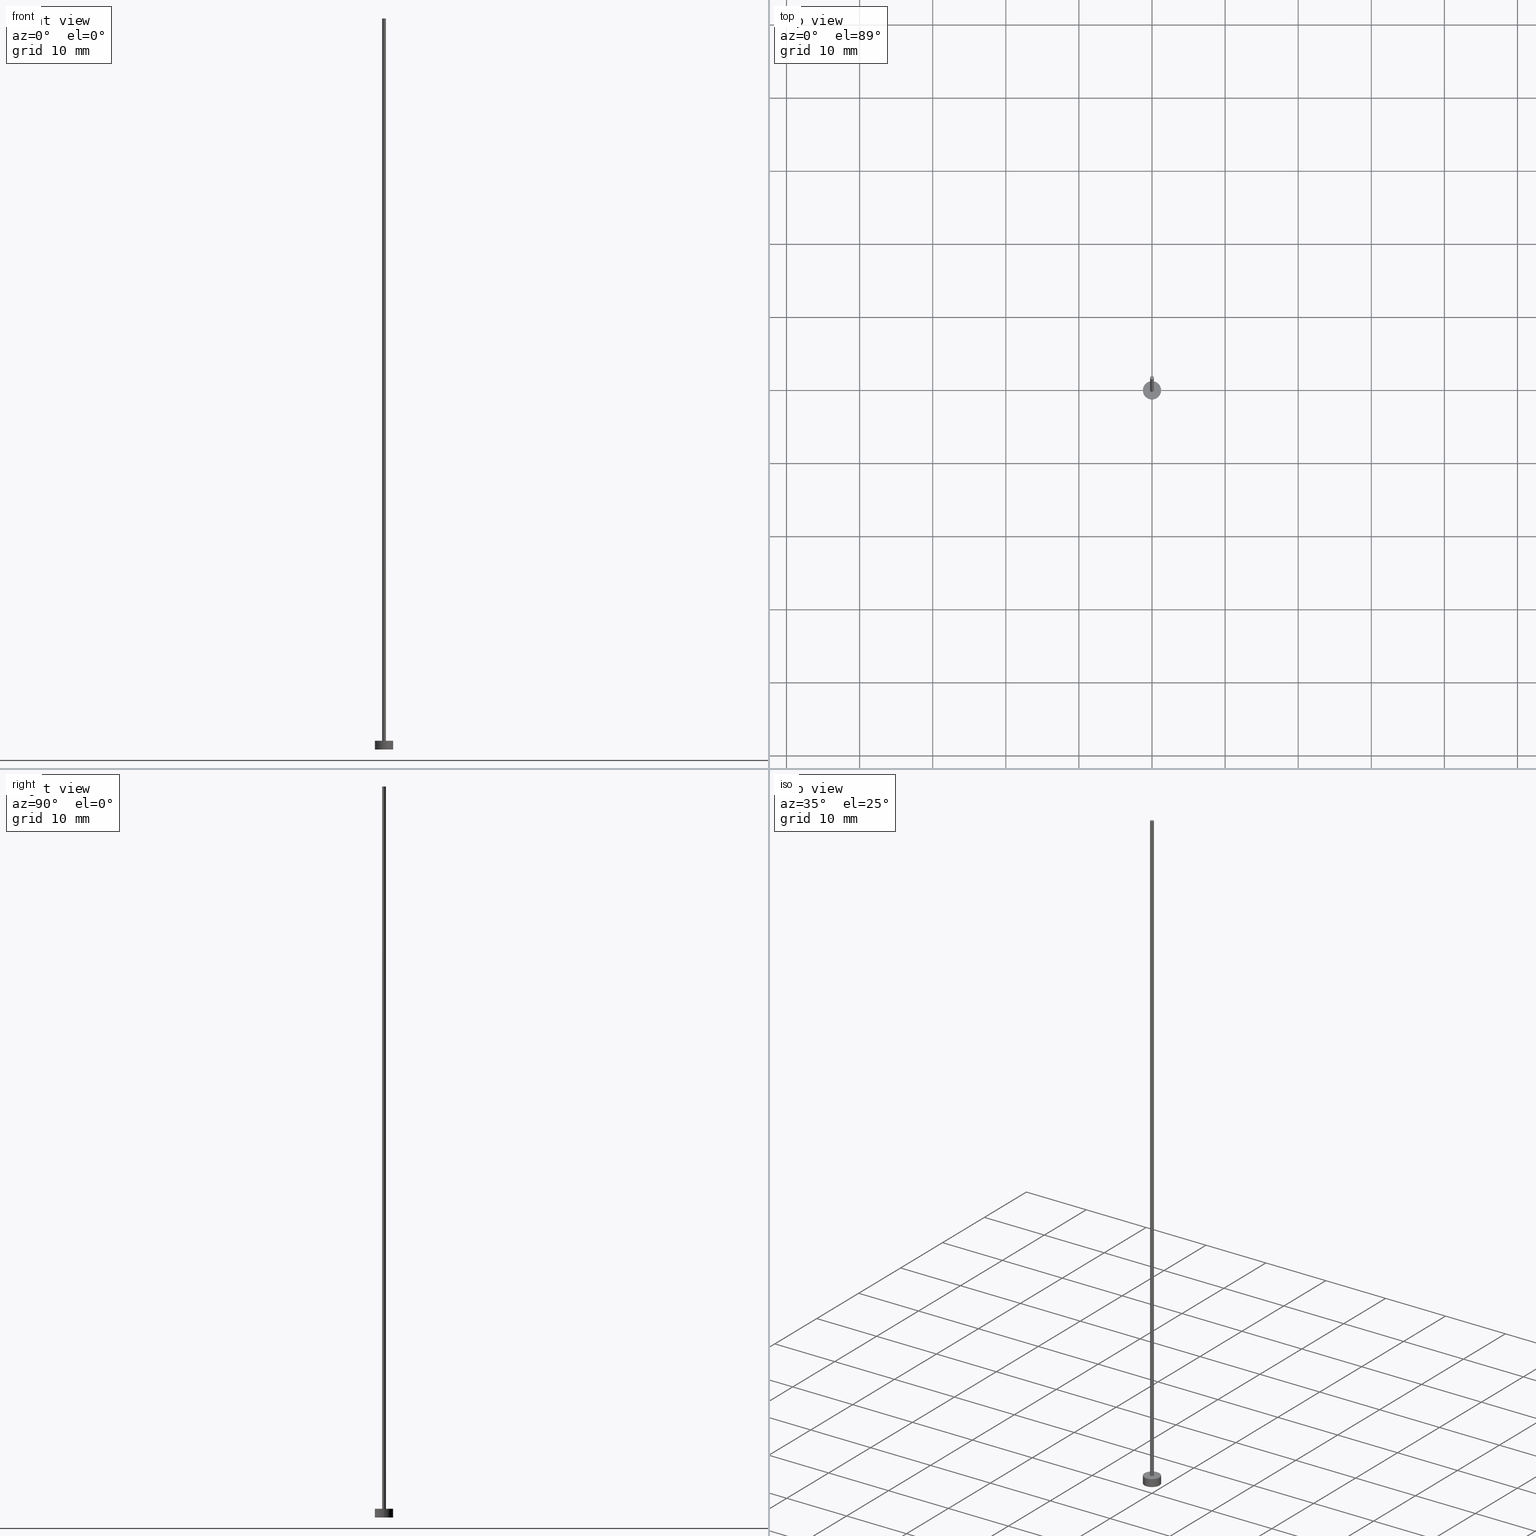
[diagram: canonical four-view strip — front | top / right | iso, engineering-drawing reading convention]
A machine part, canonical four-view strip (front | top / right | iso — engineering-drawing reading convention). The complete STEP part file that produces these views, byte-faithful:
ISO-10303-21;
HEADER;
FILE_DESCRIPTION (( 'STEP AP203' ),
    '1' );
FILE_NAME ('91c2.STEP',
    '2026-02-06T12:45:32',
    ( '' ),
    ( '' ),
    'SwSTEP 2.0',
    'SolidWorks 2019',
    '' );
FILE_SCHEMA (( 'CONFIG_CONTROL_DESIGN' ));
ENDSEC;

DATA;
#1 = AXIS2_PLACEMENT_3D ( 'NONE', #8, #14, #143 ) ;
#2 = EDGE_CURVE ( 'NONE', #106, #155, #159, .T. ) ;
#3 = PRODUCT_DEFINITION_SHAPE ( 'NONE', 'NONE',  #205 ) ;
#4 = DIRECTION ( 'NONE',  ( -0.000000000000000000, -0.000000000000000000, -1.000000000000000000 ) ) ;
#5 =( LENGTH_UNIT ( ) NAMED_UNIT ( * ) SI_UNIT ( .MILLI., .METRE. ) );
#6 = CYLINDRICAL_SURFACE ( 'NONE', #241, 1.250000000000000000 ) ;
#7 = SECURITY_CLASSIFICATION_LEVEL ( 'unclassified' ) ;
#8 = CARTESIAN_POINT ( 'NONE',  ( 0.000000000000000000, 0.000000000000000000, 0.000000000000000000 ) ) ;
#9 = ADVANCED_FACE ( 'NONE', ( #179 ), #214, .T. ) ;
#10 = EDGE_CURVE ( 'NONE', #40, #145, #216, .T. ) ;
#11 = FACE_OUTER_BOUND ( 'NONE', #154, .T. ) ;
#12 = PERSON_AND_ORGANIZATION ( #239, #178 ) ;
#13 = CYLINDRICAL_SURFACE ( 'NONE', #233, 0.2500000000000000000 ) ;
#14 = DIRECTION ( 'NONE',  ( 0.000000000000000000, 0.000000000000000000, 1.000000000000000000 ) ) ;
#15 = DIRECTION ( 'NONE',  ( -0.000000000000000000, -0.000000000000000000, -1.000000000000000000 ) ) ;
#16 =( NAMED_UNIT ( * ) PLANE_ANGLE_UNIT ( ) SI_UNIT ( $, .RADIAN. ) );
#17 = ORIENTED_EDGE ( 'NONE', *, *, #227, .F. ) ;
#18 = CC_DESIGN_APPROVAL ( #187, ( #205 ) ) ;
#19 = DIRECTION ( 'NONE',  ( -1.000000000000000000, 0.000000000000000000, 0.000000000000000000 ) ) ;
#20 = SECURITY_CLASSIFICATION ( '', '', #7 ) ;
#21 = CARTESIAN_POINT ( 'NONE',  ( 0.000000000000000000, 0.000000000000000000, 100.0000000000000000 ) ) ;
#22 = EDGE_LOOP ( 'NONE', ( #17, #109 ) ) ;
#23 =( GEOMETRIC_REPRESENTATION_CONTEXT ( 3 ) GLOBAL_UNCERTAINTY_ASSIGNED_CONTEXT ( ( #34 ) ) GLOBAL_UNIT_ASSIGNED_CONTEXT ( ( #5, #16, #44 ) ) REPRESENTATION_CONTEXT ( 'NONE', 'WORKASPACE' ) );
#24 = CIRCLE ( 'NONE', #86, 0.2500000000000000000 ) ;
#25 = APPLICATION_PROTOCOL_DEFINITION ( 'international standard', 'config_control_design', 1994, #29 ) ;
#26 = CARTESIAN_POINT ( 'NONE',  ( 1.250000000000000000, 1.530808498934191571E-16, 1.199999999999999956 ) ) ;
#27 = COORDINATED_UNIVERSAL_TIME_OFFSET ( 1, 0, .AHEAD. ) ;
#28 = APPLICATION_PROTOCOL_DEFINITION ( 'international standard', 'config_control_design', 1994, #111 ) ;
#29 = APPLICATION_CONTEXT ( 'configuration controlled 3d designs of mechanical parts and assemblies' ) ;
#30 = PLANE ( 'NONE',  #1 ) ;
#31 = ADVANCED_FACE ( 'NONE', ( #166 ), #13, .T. ) ;
#32 = PERSON_AND_ORGANIZATION_ROLE ( 'creator' ) ;
#33 = VERTEX_POINT ( 'NONE', #68 ) ;
#34 = UNCERTAINTY_MEASURE_WITH_UNIT (LENGTH_MEASURE( 1.000000000000000082E-05 ), #5, 'distance_accuracy_value', 'NONE');
#35 = VERTEX_POINT ( 'NONE', #252 ) ;
#36 = VERTEX_POINT ( 'NONE', #73 ) ;
#37 = EDGE_CURVE ( 'NONE', #161, #35, #147, .T. ) ;
#38 = AXIS2_PLACEMENT_3D ( 'NONE', #59, #93, #89 ) ;
#39 = CARTESIAN_POINT ( 'NONE',  ( 0.000000000000000000, 0.000000000000000000, 1.199999999999999956 ) ) ;
#40 = VERTEX_POINT ( 'NONE', #125 ) ;
#41 = FACE_OUTER_BOUND ( 'NONE', #128, .T. ) ;
#42 = FACE_OUTER_BOUND ( 'NONE', #102, .T. ) ;
#43 = AXIS2_PLACEMENT_3D ( 'NONE', #39, #173, #134 ) ;
#44 =( NAMED_UNIT ( * ) SI_UNIT ( $, .STERADIAN. ) SOLID_ANGLE_UNIT ( ) );
#45 = MECHANICAL_CONTEXT ( 'NONE', #29, 'mechanical' ) ;
#46 = APPROVAL_STATUS ( 'not_yet_approved' ) ;
#47 = CARTESIAN_POINT ( 'NONE',  ( -0.2500000000000000000, 0.000000000000000000, 100.0000000000000000 ) ) ;
#48 = LOCAL_TIME ( 13, 45, 32.00000000000000000, #27 ) ;
#49 = COORDINATED_UNIVERSAL_TIME_OFFSET ( 1, 0, .AHEAD. ) ;
#50 = CARTESIAN_POINT ( 'NONE',  ( 0.000000000000000000, 0.000000000000000000, 1.199999999999999956 ) ) ;
#51 = EDGE_CURVE ( 'NONE', #35, #155, #104, .T. ) ;
#52 = EDGE_CURVE ( 'NONE', #36, #33, #211, .T. ) ;
#53 = CARTESIAN_POINT ( 'NONE',  ( -1.250000000000000000, 0.000000000000000000, 1.199999999999999956 ) ) ;
#54 = APPROVAL_ROLE ( '' ) ;
#55 = AXIS2_PLACEMENT_3D ( 'NONE', #80, #238, #113 ) ;
#56 = APPROVAL_PERSON_ORGANIZATION ( #146, #193, #54 ) ;
#57 = ORIENTED_EDGE ( 'NONE', *, *, #2, .F. ) ;
#58 = EDGE_LOOP ( 'NONE', ( #230, #71 ) ) ;
#59 = CARTESIAN_POINT ( 'NONE',  ( 0.000000000000000000, 0.000000000000000000, 1.199999999999999956 ) ) ;
#60 = CARTESIAN_POINT ( 'NONE',  ( 0.000000000000000000, 0.000000000000000000, 100.0000000000000000 ) ) ;
#61 = VECTOR ( 'NONE', #244, 1000.000000000000000 ) ;
#62 = DIRECTION ( 'NONE',  ( 0.000000000000000000, 0.000000000000000000, 1.000000000000000000 ) ) ;
#63 = CC_DESIGN_PERSON_AND_ORGANIZATION_ASSIGNMENT ( #180, #181, ( #150 ) ) ;
#64 = PERSON_AND_ORGANIZATION ( #239, #178 ) ;
#65 = CC_DESIGN_PERSON_AND_ORGANIZATION_ASSIGNMENT ( #162, #84, ( #20 ) ) ;
#66 = DIRECTION ( 'NONE',  ( -0.000000000000000000, -0.000000000000000000, -1.000000000000000000 ) ) ;
#67 = MANIFOLD_SOLID_BREP ( 'P�idat vysunut�m3', #183 ) ;
#68 = CARTESIAN_POINT ( 'NONE',  ( 0.2500000000000000000, 3.061616997868383018E-17, 1.199999999999999956 ) ) ;
#69 = ORIENTED_EDGE ( 'NONE', *, *, #168, .T. ) ;
#70 = LOCAL_TIME ( 13, 45, 32.00000000000000000, #49 ) ;
#71 = ORIENTED_EDGE ( 'NONE', *, *, #200, .T. ) ;
#72 = ADVANCED_FACE ( 'NONE', ( #42 ), #245, .T. ) ;
#73 = CARTESIAN_POINT ( 'NONE',  ( 0.2500000000000000000, 3.061616997868383018E-17, 100.0000000000000000 ) ) ;
#74 = CARTESIAN_POINT ( 'NONE',  ( -0.2500000000000000000, 0.000000000000000000, 1.199999999999999956 ) ) ;
#75 = PRODUCT ( '91c2', '91c2', '', ( #45 ) ) ;
#76 = VECTOR ( 'NONE', #164, 1000.000000000000000 ) ;
#77 = AXIS2_PLACEMENT_3D ( 'NONE', #218, #101, #144 ) ;
#78 = CC_DESIGN_APPROVAL ( #193, ( #20 ) ) ;
#79 = ORIENTED_EDGE ( 'NONE', *, *, #200, .F. ) ;
#80 = CARTESIAN_POINT ( 'NONE',  ( 0.000000000000000000, 0.000000000000000000, 0.000000000000000000 ) ) ;
#81 = ADVANCED_FACE ( 'NONE', ( #201 ), #30, .F. ) ;
#82 = DATE_AND_TIME ( #96, #48 ) ;
#83 = DIRECTION ( 'NONE',  ( 0.000000000000000000, 0.000000000000000000, 1.000000000000000000 ) ) ;
#84 = PERSON_AND_ORGANIZATION_ROLE ( 'classification_officer' ) ;
#85 = APPROVAL_STATUS ( 'not_yet_approved' ) ;
#86 = AXIS2_PLACEMENT_3D ( 'NONE', #21, #208, #189 ) ;
#87 = DATE_TIME_ROLE ( 'creation_date' ) ;
#88 = CIRCLE ( 'NONE', #118, 0.2500000000000000000 ) ;
#89 = DIRECTION ( 'NONE',  ( 1.000000000000000000, 0.000000000000000000, -0.000000000000000000 ) ) ;
#90 = ORIENTED_EDGE ( 'NONE', *, *, #157, .T. ) ;
#91 = AXIS2_PLACEMENT_3D ( 'NONE', #50, #122, #105 ) ;
#92 = ORIENTED_EDGE ( 'NONE', *, *, #157, .F. ) ;
#93 = DIRECTION ( 'NONE',  ( 0.000000000000000000, 0.000000000000000000, 1.000000000000000000 ) ) ;
#94 = CIRCLE ( 'NONE', #219, 0.2500000000000000000 ) ;
#95 = CARTESIAN_POINT ( 'NONE',  ( -1.250000000000000000, 0.000000000000000000, 1.199999999999999956 ) ) ;
#96 = CALENDAR_DATE ( 2026, 6, 2 ) ;
#97 = LOCAL_TIME ( 13, 45, 32.00000000000000000, #221 ) ;
#98 = PERSON_AND_ORGANIZATION ( #239, #178 ) ;
#99 = DIRECTION ( 'NONE',  ( -1.000000000000000000, 0.000000000000000000, 0.000000000000000000 ) ) ;
#100 = PERSON_AND_ORGANIZATION ( #239, #178 ) ;
#101 = DIRECTION ( 'NONE',  ( 0.000000000000000000, 0.000000000000000000, 1.000000000000000000 ) ) ;
#102 = EDGE_LOOP ( 'NONE', ( #79, #194, #234, #130 ) ) ;
#103 = CARTESIAN_POINT ( 'NONE',  ( 0.000000000000000000, 0.000000000000000000, 100.0000000000000000 ) ) ;
#104 = CIRCLE ( 'NONE', #55, 1.250000000000000000 ) ;
#105 = DIRECTION ( 'NONE',  ( 1.000000000000000000, 0.000000000000000000, 0.000000000000000000 ) ) ;
#106 = VERTEX_POINT ( 'NONE', #225 ) ;
#107 = CC_DESIGN_PERSON_AND_ORGANIZATION_ASSIGNMENT ( #98, #32, ( #150 ) ) ;
#108 = APPROVAL_DATE_TIME ( #169, #193 ) ;
#109 = ORIENTED_EDGE ( 'NONE', *, *, #168, .F. ) ;
#110 = ORIENTED_EDGE ( 'NONE', *, *, #172, .F. ) ;
#111 = APPLICATION_CONTEXT ( 'configuration controlled 3d designs of mechanical parts and assemblies' ) ;
#112 = ADVANCED_BREP_SHAPE_REPRESENTATION ( '91c2', ( #67, #119 ), #23 ) ;
#113 = DIRECTION ( 'NONE',  ( 1.000000000000000000, 0.000000000000000000, 0.000000000000000000 ) ) ;
#114 = CARTESIAN_POINT ( 'NONE',  ( 1.250000000000000000, 1.530808498934191571E-16, 0.000000000000000000 ) ) ;
#115 = PERSON_AND_ORGANIZATION ( #239, #178 ) ;
#116 = CARTESIAN_POINT ( 'NONE',  ( 0.000000000000000000, 0.000000000000000000, 100.0000000000000000 ) ) ;
#117 = CALENDAR_DATE ( 2026, 6, 2 ) ;
#118 = AXIS2_PLACEMENT_3D ( 'NONE', #60, #136, #203 ) ;
#119 = AXIS2_PLACEMENT_3D ( 'NONE', #213, #62, #141 ) ;
#120 = CALENDAR_DATE ( 2026, 6, 2 ) ;
#121 = CALENDAR_DATE ( 2026, 6, 2 ) ;
#122 = DIRECTION ( 'NONE',  ( 0.000000000000000000, 0.000000000000000000, 1.000000000000000000 ) ) ;
#123 = VECTOR ( 'NONE', #224, 1000.000000000000000 ) ;
#124 = CIRCLE ( 'NONE', #77, 1.250000000000000000 ) ;
#125 = CARTESIAN_POINT ( 'NONE',  ( -0.2500000000000000000, 0.000000000000000000, 100.0000000000000000 ) ) ;
#126 = SHAPE_DEFINITION_REPRESENTATION ( #3, #112 ) ;
#127 = CIRCLE ( 'NONE', #43, 0.2500000000000000000 ) ;
#128 = EDGE_LOOP ( 'NONE', ( #110, #129, #69, #250 ) ) ;
#129 = ORIENTED_EDGE ( 'NONE', *, *, #52, .T. ) ;
#130 = ORIENTED_EDGE ( 'NONE', *, *, #37, .F. ) ;
#131 = AXIS2_PLACEMENT_3D ( 'NONE', #167, #170, #133 ) ;
#132 = LOCAL_TIME ( 13, 45, 32.00000000000000000, #160 ) ;
#133 = DIRECTION ( 'NONE',  ( 1.000000000000000000, 0.000000000000000000, 0.000000000000000000 ) ) ;
#134 = DIRECTION ( 'NONE',  ( 1.000000000000000000, 0.000000000000000000, 0.000000000000000000 ) ) ;
#135 = ORIENTED_EDGE ( 'NONE', *, *, #138, .F. ) ;
#136 = DIRECTION ( 'NONE',  ( 0.000000000000000000, 0.000000000000000000, 1.000000000000000000 ) ) ;
#137 = CIRCLE ( 'NONE', #131, 1.250000000000000000 ) ;
#138 = EDGE_CURVE ( 'NONE', #155, #35, #137, .T. ) ;
#139 = APPROVAL_DATE_TIME ( #204, #187 ) ;
#140 = DIRECTION ( 'NONE',  ( 1.000000000000000000, 0.000000000000000000, -0.000000000000000000 ) ) ;
#141 = DIRECTION ( 'NONE',  ( 1.000000000000000000, 0.000000000000000000, 0.000000000000000000 ) ) ;
#142 = CC_DESIGN_DATE_AND_TIME_ASSIGNMENT ( #82, #87, ( #205 ) ) ;
#143 = DIRECTION ( 'NONE',  ( 1.000000000000000000, 0.000000000000000000, -0.000000000000000000 ) ) ;
#144 = DIRECTION ( 'NONE',  ( 1.000000000000000000, 0.000000000000000000, 0.000000000000000000 ) ) ;
#145 = VERTEX_POINT ( 'NONE', #74 ) ;
#146 = PERSON_AND_ORGANIZATION ( #239, #178 ) ;
#147 = LINE ( 'NONE', #53, #76 ) ;
#148 = DIRECTION ( 'NONE',  ( -0.000000000000000000, -0.000000000000000000, -1.000000000000000000 ) ) ;
#149 = EDGE_LOOP ( 'NONE', ( #231, #135 ) ) ;
#150 = PRODUCT_DEFINITION_FORMATION_WITH_SPECIFIED_SOURCE ( 'LIBOVOLN�', '', #75, .NOT_KNOWN. ) ;
#151 = DIRECTION ( 'NONE',  ( 1.000000000000000000, 0.000000000000000000, 0.000000000000000000 ) ) ;
#152 = CARTESIAN_POINT ( 'NONE',  ( 0.000000000000000000, 0.000000000000000000, 1.199999999999999956 ) ) ;
#153 = APPROVAL ( #85, 'NEUR�EN�' ) ;
#154 = EDGE_LOOP ( 'NONE', ( #57, #206, #222, #182 ) ) ;
#155 = VERTEX_POINT ( 'NONE', #114 ) ;
#156 = AXIS2_PLACEMENT_3D ( 'NONE', #212, #243, #196 ) ;
#157 = EDGE_CURVE ( 'NONE', #40, #36, #88, .T. ) ;
#158 = APPROVAL_ROLE ( '' ) ;
#159 = LINE ( 'NONE', #26, #61 ) ;
#160 = COORDINATED_UNIVERSAL_TIME_OFFSET ( 1, 0, .AHEAD. ) ;
#161 = VERTEX_POINT ( 'NONE', #95 ) ;
#162 = PERSON_AND_ORGANIZATION ( #239, #178 ) ;
#163 = APPROVAL_PERSON_ORGANIZATION ( #12, #153, #158 ) ;
#164 = DIRECTION ( 'NONE',  ( -0.000000000000000000, -0.000000000000000000, -1.000000000000000000 ) ) ;
#165 = DESIGN_CONTEXT ( 'detailed design', #111, 'design' ) ;
#166 = FACE_OUTER_BOUND ( 'NONE', #229, .T. ) ;
#167 = CARTESIAN_POINT ( 'NONE',  ( 0.000000000000000000, 0.000000000000000000, 0.000000000000000000 ) ) ;
#168 = EDGE_CURVE ( 'NONE', #33, #145, #94, .T. ) ;
#169 = DATE_AND_TIME ( #228, #195 ) ;
#170 = DIRECTION ( 'NONE',  ( 0.000000000000000000, 0.000000000000000000, 1.000000000000000000 ) ) ;
#171 = ORIENTED_EDGE ( 'NONE', *, *, #10, .T. ) ;
#172 = EDGE_CURVE ( 'NONE', #36, #40, #24, .T. ) ;
#173 = DIRECTION ( 'NONE',  ( 0.000000000000000000, 0.000000000000000000, 1.000000000000000000 ) ) ;
#174 = ORIENTED_EDGE ( 'NONE', *, *, #172, .T. ) ;
#175 = FACE_OUTER_BOUND ( 'NONE', #58, .T. ) ;
#176 = PERSON_AND_ORGANIZATION_ROLE ( 'design_owner' ) ;
#177 = VECTOR ( 'NONE', #15, 1000.000000000000000 ) ;
#178 = ORGANIZATION ( 'NEUR�EN�', 'NEUR�EN�', '' ) ;
#179 = FACE_OUTER_BOUND ( 'NONE', #191, .T. ) ;
#180 = PERSON_AND_ORGANIZATION ( #239, #178 ) ;
#181 = PERSON_AND_ORGANIZATION_ROLE ( 'design_supplier' ) ;
#182 = ORIENTED_EDGE ( 'NONE', *, *, #51, .T. ) ;
#183 = CLOSED_SHELL ( 'NONE', ( #237, #72, #207, #184, #81, #31, #9 ) ) ;
#184 = ADVANCED_FACE ( 'NONE', ( #192, #175 ), #232, .T. ) ;
#185 = CYLINDRICAL_SURFACE ( 'NONE', #156, 0.2500000000000000000 ) ;
#186 = DIRECTION ( 'NONE',  ( -1.000000000000000000, 0.000000000000000000, 0.000000000000000000 ) ) ;
#187 = APPROVAL ( #46, 'NEUR�EN�' ) ;
#188 = APPROVAL_STATUS ( 'not_yet_approved' ) ;
#189 = DIRECTION ( 'NONE',  ( 1.000000000000000000, 0.000000000000000000, 0.000000000000000000 ) ) ;
#190 = DIRECTION ( 'NONE',  ( 0.000000000000000000, 0.000000000000000000, 1.000000000000000000 ) ) ;
#191 = EDGE_LOOP ( 'NONE', ( #90, #174 ) ) ;
#192 = FACE_BOUND ( 'NONE', #22, .T. ) ;
#193 = APPROVAL ( #188, 'NEUR�EN�' ) ;
#194 = ORIENTED_EDGE ( 'NONE', *, *, #2, .T. ) ;
#195 = LOCAL_TIME ( 13, 45, 32.00000000000000000, #223 ) ;
#196 = DIRECTION ( 'NONE',  ( -1.000000000000000000, 0.000000000000000000, 0.000000000000000000 ) ) ;
#197 = CC_DESIGN_PERSON_AND_ORGANIZATION_ASSIGNMENT ( #100, #242, ( #205 ) ) ;
#198 = APPROVAL_DATE_TIME ( #247, #153 ) ;
#199 = CC_DESIGN_SECURITY_CLASSIFICATION ( #20, ( #150 ) ) ;
#200 = EDGE_CURVE ( 'NONE', #106, #161, #235, .T. ) ;
#201 = FACE_OUTER_BOUND ( 'NONE', #149, .T. ) ;
#202 = CARTESIAN_POINT ( 'NONE',  ( 0.2500000000000000000, 3.061616997868383018E-17, 100.0000000000000000 ) ) ;
#203 = DIRECTION ( 'NONE',  ( 1.000000000000000000, 0.000000000000000000, 0.000000000000000000 ) ) ;
#204 = DATE_AND_TIME ( #121, #97 ) ;
#205 = PRODUCT_DEFINITION ( 'NEZN�M�', '', #150, #165 ) ;
#206 = ORIENTED_EDGE ( 'NONE', *, *, #253, .F. ) ;
#207 = ADVANCED_FACE ( 'NONE', ( #11 ), #6, .T. ) ;
#208 = DIRECTION ( 'NONE',  ( 0.000000000000000000, 0.000000000000000000, 1.000000000000000000 ) ) ;
#209 = APPROVAL_PERSON_ORGANIZATION ( #115, #187, #215 ) ;
#210 = ORIENTED_EDGE ( 'NONE', *, *, #227, .T. ) ;
#211 = LINE ( 'NONE', #202, #177 ) ;
#212 = CARTESIAN_POINT ( 'NONE',  ( 0.000000000000000000, 0.000000000000000000, 100.0000000000000000 ) ) ;
#213 = CARTESIAN_POINT ( 'NONE',  ( 0.000000000000000000, 0.000000000000000000, 0.000000000000000000 ) ) ;
#214 = PLANE ( 'NONE',  #240 ) ;
#215 = APPROVAL_ROLE ( '' ) ;
#216 = LINE ( 'NONE', #47, #123 ) ;
#217 = CARTESIAN_POINT ( 'NONE',  ( 0.000000000000000000, 0.000000000000000000, 1.199999999999999956 ) ) ;
#218 = CARTESIAN_POINT ( 'NONE',  ( 0.000000000000000000, 0.000000000000000000, 1.199999999999999956 ) ) ;
#219 = AXIS2_PLACEMENT_3D ( 'NONE', #152, #190, #151 ) ;
#220 = CARTESIAN_POINT ( 'NONE',  ( 0.000000000000000000, 0.000000000000000000, 1.199999999999999956 ) ) ;
#221 = COORDINATED_UNIVERSAL_TIME_OFFSET ( 1, 0, .AHEAD. ) ;
#222 = ORIENTED_EDGE ( 'NONE', *, *, #37, .T. ) ;
#223 = COORDINATED_UNIVERSAL_TIME_OFFSET ( 1, 0, .AHEAD. ) ;
#224 = DIRECTION ( 'NONE',  ( -0.000000000000000000, -0.000000000000000000, -1.000000000000000000 ) ) ;
#225 = CARTESIAN_POINT ( 'NONE',  ( 1.250000000000000000, 1.530808498934191571E-16, 1.199999999999999956 ) ) ;
#226 = PRODUCT_RELATED_PRODUCT_CATEGORY ( 'detail', '', ( #75 ) ) ;
#227 = EDGE_CURVE ( 'NONE', #145, #33, #127, .T. ) ;
#228 = CALENDAR_DATE ( 2026, 6, 2 ) ;
#229 = EDGE_LOOP ( 'NONE', ( #255, #92, #171, #210 ) ) ;
#230 = ORIENTED_EDGE ( 'NONE', *, *, #253, .T. ) ;
#231 = ORIENTED_EDGE ( 'NONE', *, *, #51, .F. ) ;
#232 = PLANE ( 'NONE',  #38 ) ;
#233 = AXIS2_PLACEMENT_3D ( 'NONE', #103, #66, #186 ) ;
#234 = ORIENTED_EDGE ( 'NONE', *, *, #138, .T. ) ;
#235 = CIRCLE ( 'NONE', #91, 1.250000000000000000 ) ;
#236 = CC_DESIGN_PERSON_AND_ORGANIZATION_ASSIGNMENT ( #64, #176, ( #75 ) ) ;
#237 = ADVANCED_FACE ( 'NONE', ( #41 ), #185, .T. ) ;
#238 = DIRECTION ( 'NONE',  ( 0.000000000000000000, 0.000000000000000000, 1.000000000000000000 ) ) ;
#239 = PERSON ( 'NEUR�EN�', 'NEUR�EN�', 'NEUR�EN�', ('NEUR�EN�'), ('NEUR�EN�'), ('NEUR�EN�') ) ;
#240 = AXIS2_PLACEMENT_3D ( 'NONE', #116, #83, #140 ) ;
#241 = AXIS2_PLACEMENT_3D ( 'NONE', #220, #148, #19 ) ;
#242 = PERSON_AND_ORGANIZATION_ROLE ( 'creator' ) ;
#243 = DIRECTION ( 'NONE',  ( -0.000000000000000000, -0.000000000000000000, -1.000000000000000000 ) ) ;
#244 = DIRECTION ( 'NONE',  ( -0.000000000000000000, -0.000000000000000000, -1.000000000000000000 ) ) ;
#245 = CYLINDRICAL_SURFACE ( 'NONE', #254, 1.250000000000000000 ) ;
#246 = CC_DESIGN_DATE_AND_TIME_ASSIGNMENT ( #248, #249, ( #20 ) ) ;
#247 = DATE_AND_TIME ( #117, #70 ) ;
#248 = DATE_AND_TIME ( #120, #132 ) ;
#249 = DATE_TIME_ROLE ( 'classification_date' ) ;
#250 = ORIENTED_EDGE ( 'NONE', *, *, #10, .F. ) ;
#251 = CC_DESIGN_APPROVAL ( #153, ( #150 ) ) ;
#252 = CARTESIAN_POINT ( 'NONE',  ( -1.250000000000000000, 0.000000000000000000, 0.000000000000000000 ) ) ;
#253 = EDGE_CURVE ( 'NONE', #161, #106, #124, .T. ) ;
#254 = AXIS2_PLACEMENT_3D ( 'NONE', #217, #4, #99 ) ;
#255 = ORIENTED_EDGE ( 'NONE', *, *, #52, .F. ) ;
ENDSEC;
END-ISO-10303-21;
